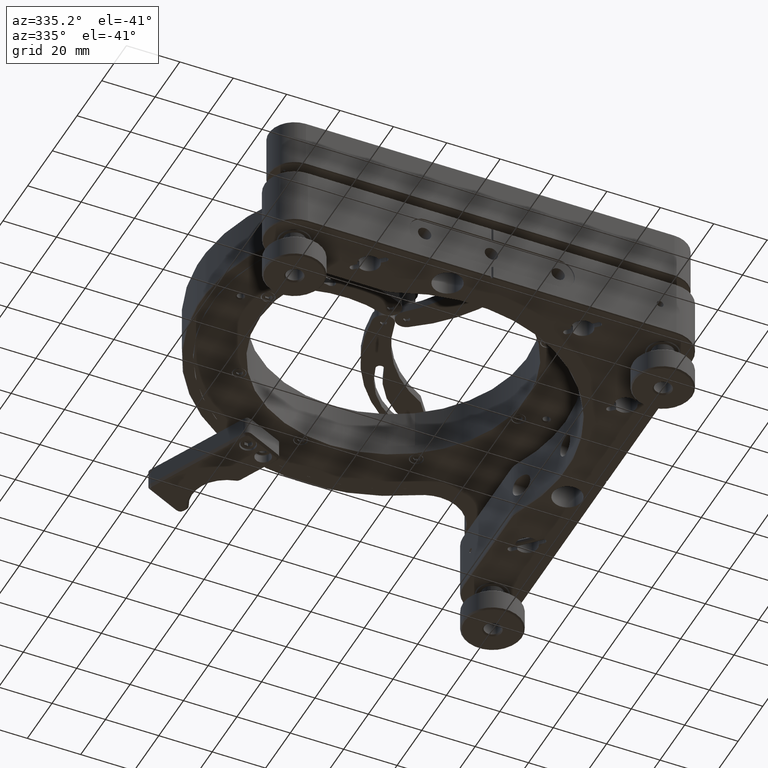
[diagram: clean part render]
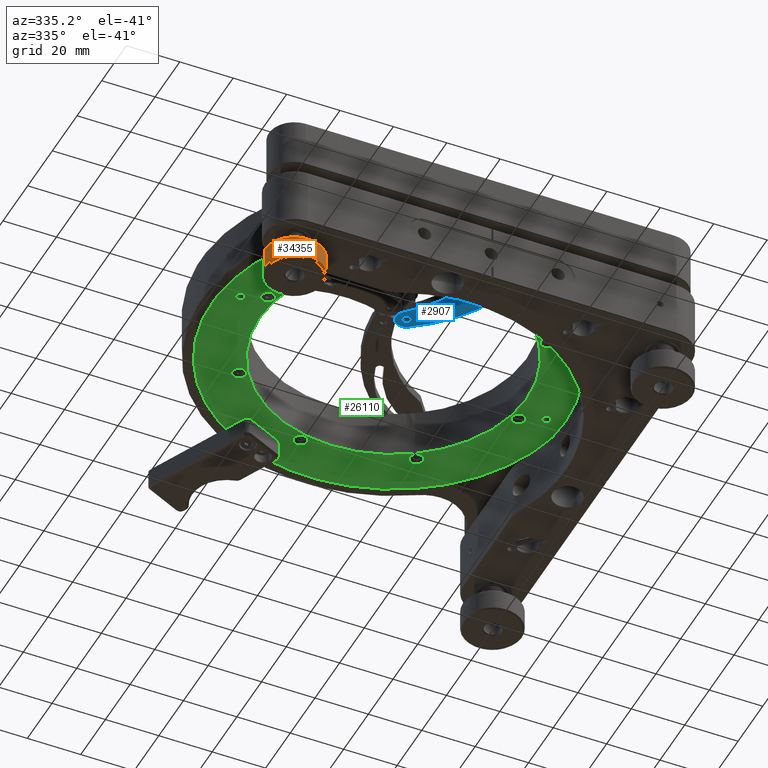
[diagram: same view with three faces highlighted in distinct colors, each labeled with its STEP entity id]
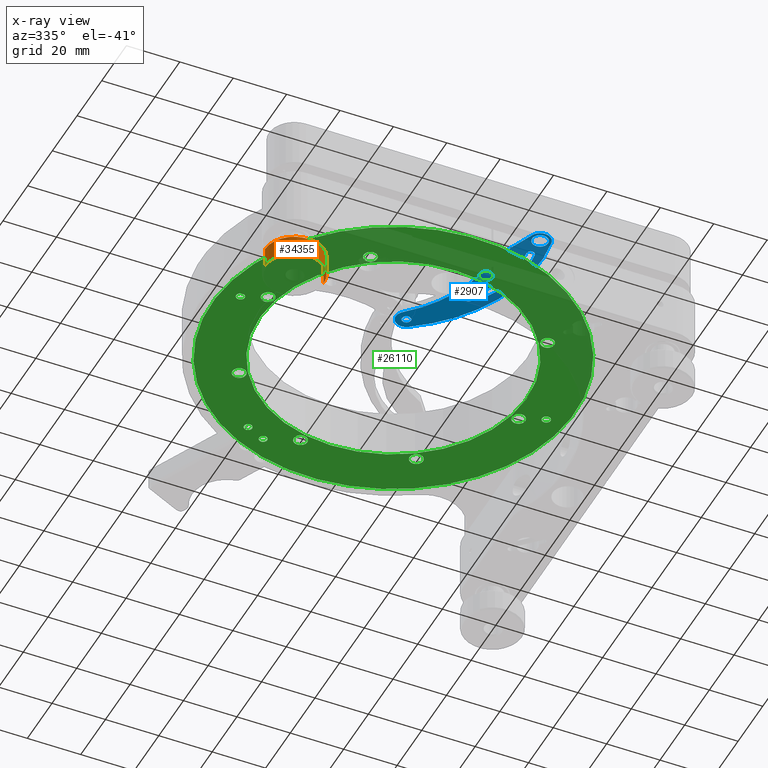
[diagram: x-ray of the same camera — body ghosted, the three highlighted faces saturated]
A machine part, auxiliary view with three faces highlighted in distinct colors.
The next image is the same camera in x-ray (body ghosted, the three faces saturated) — at least one of them is partly hidden behind the body in this view.
Their STEP definitions:

[orange] entity #34355 — the highlighted cylindrical surface (edge-blend (fillet) strip) has radius 11 mm, axis along (0, -0, -1).
#1059 = CARTESIAN_POINT ( 'NONE',  ( -25.13355819233196442, -51.18610618003471302, 41.08081318928080350 ) ) ;
#2793 = CARTESIAN_POINT ( 'NONE',  ( -36.13311552716503172, -51.28478970307667595, 48.58081318928081060 ) ) ;
#3302 = ORIENTED_EDGE ( 'NONE', *, *, #20271, .T. ) ;
#5561 = EDGE_CURVE ( 'NONE', #21149, #10064, #39898, .T. ) ;
#5732 = DIRECTION ( 'NONE',  ( 9.708507141352915573E-50, -1.405738883737467706E-50, -1.000000000000000000 ) ) ;
#6472 = ORIENTED_EDGE ( 'NONE', *, *, #18702, .T. ) ;
#7223 = CARTESIAN_POINT ( 'NONE',  ( -25.13355819233196442, -51.18610618003471302, 48.58081318928081060 ) ) ;
#9070 = DIRECTION ( 'NONE',  ( 0.9999597577120973302, 0.008971229367451439771, 0.000000000000000000 ) ) ;
#9088 = ORIENTED_EDGE ( 'NONE', *, *, #5561, .F. ) ;
#9839 = LINE ( 'NONE', #35423, #37794 ) ;
#10043 = CARTESIAN_POINT ( 'NONE',  ( -47.13267286199810258, -51.38347322611864598, 41.08081318928080350 ) ) ;
#10064 = VERTEX_POINT ( 'NONE', #1059 ) ;
#10196 = DIRECTION ( 'NONE',  ( -0.9999597577120973302, -0.008971229367451439771, 0.000000000000000000 ) ) ;
#11796 = DIRECTION ( 'NONE',  ( -0.9999597577120973302, -0.008971229367451439771, 0.000000000000000000 ) ) ;
#13897 = VERTEX_POINT ( 'NONE', #10043 ) ;
#14907 = DIRECTION ( 'NONE',  ( 9.708507141352915573E-50, -1.405738883737467706E-50, -1.000000000000000000 ) ) ;
#15121 = FACE_OUTER_BOUND ( 'NONE', #30147, .T. ) ;
#17619 = CIRCLE ( 'NONE', #19649, 11.00000000000002842 ) ;
#18702 = EDGE_CURVE ( 'NONE', #21149, #21930, #37621, .T. ) ;
#19649 = AXIS2_PLACEMENT_3D ( 'NONE', #25601, #29558, #10196 ) ;
#20271 = EDGE_CURVE ( 'NONE', #21930, #13897, #9839, .T. ) ;
#21026 = ORIENTED_EDGE ( 'NONE', *, *, #31818, .T. ) ;
#21149 = VERTEX_POINT ( 'NONE', #7223 ) ;
#21930 = VERTEX_POINT ( 'NONE', #28102 ) ;
#24090 = VECTOR ( 'NONE', #14907, 1000.000000000000000 ) ;
#25601 = CARTESIAN_POINT ( 'NONE',  ( -36.13311552716503172, -51.28478970307667595, 41.08081318928080350 ) ) ;
#26390 = AXIS2_PLACEMENT_3D ( 'NONE', #37593, #28446, #9070 ) ;
#27656 = AXIS2_PLACEMENT_3D ( 'NONE', #2793, #5732, #11796 ) ;
#27834 = CYLINDRICAL_SURFACE ( 'NONE', #26390, 11.00000000000002842 ) ;
#28102 = CARTESIAN_POINT ( 'NONE',  ( -47.13267286199810258, -51.38347322611864598, 48.58081318928081060 ) ) ;
#28446 = DIRECTION ( 'NONE',  ( 9.708507141352915573E-50, -1.405738883737467706E-50, -1.000000000000000000 ) ) ;
#29558 = DIRECTION ( 'NONE',  ( -9.708507141352915573E-50, 1.405738883737467706E-50, 1.000000000000000000 ) ) ;
#30147 = EDGE_LOOP ( 'NONE', ( #6472, #3302, #21026, #9088 ) ) ;
#31151 = CARTESIAN_POINT ( 'NONE',  ( -25.13355819233193600, -51.18610618003471302, 49.08081318928081771 ) ) ;
#31818 = EDGE_CURVE ( 'NONE', #13897, #10064, #17619, .T. ) ;
#34355 = ADVANCED_FACE ( 'NONE', ( #15121 ), #27834, .T. ) ;
#35423 = CARTESIAN_POINT ( 'NONE',  ( -47.13267286199813100, -51.38347322611864598, 49.08081318928081771 ) ) ;
#37593 = CARTESIAN_POINT ( 'NONE',  ( -36.13311552716503172, -51.28478970307667595, 49.08081318928081771 ) ) ;
#37621 = CIRCLE ( 'NONE', #27656, 11.00000000000002842 ) ;
#37794 = VECTOR ( 'NONE', #38980, 1000.000000000000000 ) ;
#38980 = DIRECTION ( 'NONE',  ( 9.708507141352915573E-50, -1.405738883737467706E-50, -1.000000000000000000 ) ) ;
#39898 = LINE ( 'NONE', #31151, #24090 ) ;

[blue] entity #2907 — the highlighted planar face has unit normal (-0, -0, -1).
#58 = CARTESIAN_POINT ( 'NONE',  ( 50.88223872565853867, -23.92790430131665858, 101.7358086520721230 ) ) ;
#1052 = DIRECTION ( 'NONE',  ( 3.938259351008654554E-16, 8.192752432459204675E-18, 1.000000000000000000 ) ) ;
#1212 = EDGE_CURVE ( 'NONE', #30265, #22453, #20400, .T. ) ;
#1220 = EDGE_CURVE ( 'NONE', #21457, #10017, #35083, .T. ) ;
#1592 = VERTEX_POINT ( 'NONE', #31735 ) ;
#1681 = CARTESIAN_POINT ( 'NONE',  ( 58.02355692039388657, -40.45066358787475025, 101.7358086520721230 ) ) ;
#1797 = EDGE_CURVE ( 'NONE', #39862, #12537, #38970, .T. ) ;
#2127 = EDGE_CURVE ( 'NONE', #8812, #28971, #34318, .T. ) ;
#2526 = DIRECTION ( 'NONE',  ( -0.9179310714754498335, -0.3967398997075195499, 4.405646923115701175E-16 ) ) ;
#2907 = ADVANCED_FACE ( 'NONE', ( #10287, #22991, #10703, #7352 ), #26535, .T. ) ;
#4310 = EDGE_CURVE ( 'NONE', #26769, #30265, #41149, .T. ) ;
#5135 = CARTESIAN_POINT ( 'NONE',  ( 61.55956685481619672, -5.695465492806514263, 101.7358086520721088 ) ) ;
#5181 = CARTESIAN_POINT ( 'NONE',  ( 61.69528120629568946, -38.86370398904468004, 101.7358086520721088 ) ) ;
#5406 = DIRECTION ( 'NONE',  ( 3.938259351008654554E-16, 8.192752432459204675E-18, 1.000000000000000000 ) ) ;
#5874 = CARTESIAN_POINT ( 'NONE',  ( 29.20473373600028921, -25.34174706074131933, 101.7358086520721230 ) ) ;
#5900 = ORIENTED_EDGE ( 'NONE', *, *, #23006, .T. ) ;
#6123 = DIRECTION ( 'NONE',  ( 3.938259351008654554E-16, 8.192752432459204675E-18, 1.000000000000000000 ) ) ;
#6755 = EDGE_LOOP ( 'NONE', ( #39942, #41098, #13636, #34574, #29278, #31701 ) ) ;
#6801 = CARTESIAN_POINT ( 'NONE',  ( 6.483702566289196945, -29.49985947525769703, 101.7358086520721372 ) ) ;
#7142 = DIRECTION ( 'NONE',  ( -0.9179310714754497225, -0.3967398997075196609, 0.000000000000000000 ) ) ;
#7150 = DIRECTION ( 'NONE',  ( -3.938259351008654061E-16, -8.192752432459195430E-18, -1.000000000000000000 ) ) ;
#7352 = FACE_OUTER_BOUND ( 'NONE', #23234, .T. ) ;
#7913 = CARTESIAN_POINT ( 'NONE',  ( 39.70917909255471301, 20.46080214568743472, 101.7358086520721230 ) ) ;
#7927 = DIRECTION ( 'NONE',  ( -0.9179310714754497225, -0.3967398997075196054, 4.022547190670858624E-16 ) ) ;
#7938 = AXIS2_PLACEMENT_3D ( 'NONE', #5874, #28180, #2526 ) ;
#8747 = EDGE_CURVE ( 'NONE', #10017, #15967, #24414, .T. ) ;
#8812 = VERTEX_POINT ( 'NONE', #12976 ) ;
#8967 = VERTEX_POINT ( 'NONE', #30889 ) ;
#9708 = CARTESIAN_POINT ( 'NONE',  ( 3.093063134598625030, -21.65498859432763012, 101.7358086520721372 ) ) ;
#10017 = VERTEX_POINT ( 'NONE', #1681 ) ;
#10287 = FACE_BOUND ( 'NONE', #22987, .T. ) ;
#10296 = VERTEX_POINT ( 'NONE', #37938 ) ;
#10538 = CIRCLE ( 'NONE', #39113, 2.999999999999993339 ) ;
#10697 = CARTESIAN_POINT ( 'NONE',  ( 52.12675144626264512, -1.601883874732458413, 101.7358086520721230 ) ) ;
#10703 = FACE_BOUND ( 'NONE', #19877, .T. ) ;
#10759 = DIRECTION ( 'NONE',  ( -0.9179310714754495004, -0.3967398997075201605, 0.000000000000000000 ) ) ;
#10853 = ORIENTED_EDGE ( 'NONE', *, *, #24531, .F. ) ;
#10922 = DIRECTION ( 'NONE',  ( -0.9179310714754495004, -0.3967398997075201605, 0.000000000000000000 ) ) ;
#11030 = ORIENTED_EDGE ( 'NONE', *, *, #1220, .F. ) ;
#11512 = VERTEX_POINT ( 'NONE', #23865 ) ;
#12073 = VERTEX_POINT ( 'NONE', #29765 ) ;
#12537 = VERTEX_POINT ( 'NONE', #20589 ) ;
#12940 = EDGE_CURVE ( 'NONE', #22453, #21457, #34180, .T. ) ;
#12976 = CARTESIAN_POINT ( 'NONE',  ( 60.29499851555623025, -31.84307663915524600, 101.7358086520721088 ) ) ;
#13002 = AXIS2_PLACEMENT_3D ( 'NONE', #15910, #19451, #19655 ) ;
#13064 = AXIS2_PLACEMENT_3D ( 'NONE', #9708, #34880, #37814 ) ;
#13122 = CIRCLE ( 'NONE', #27087, 60.00000000000000000 ) ;
#13339 = DIRECTION ( 'NONE',  ( 3.938259351008654554E-16, 8.192752432459204675E-18, 1.000000000000000000 ) ) ;
#13636 = ORIENTED_EDGE ( 'NONE', *, *, #32185, .T. ) ;
#14066 = DIRECTION ( 'NONE',  ( -0.9179310714754498335, -0.3967398997075195499, 2.900681565754647166E-16 ) ) ;
#14362 = DIRECTION ( 'NONE',  ( 3.938259351008654554E-16, 8.192752432459204675E-18, 1.000000000000000000 ) ) ;
#14446 = DIRECTION ( 'NONE',  ( 3.938259351008654554E-16, 8.192752432459204675E-18, 1.000000000000000000 ) ) ;
#15029 = EDGE_CURVE ( 'NONE', #8967, #12073, #19325, .T. ) ;
#15660 = AXIS2_PLACEMENT_3D ( 'NONE', #36655, #5406, #7927 ) ;
#15910 = CARTESIAN_POINT ( 'NONE',  ( 61.69528120629568946, -38.86370398904468004, 101.7358086520721088 ) ) ;
#15967 = VERTEX_POINT ( 'NONE', #40862 ) ;
#16887 = CARTESIAN_POINT ( 'NONE',  ( 61.67189512276940633, -31.24796678959396701, 101.7358086520721088 ) ) ;
#17579 = CARTESIAN_POINT ( 'NONE',  ( 61.69528120629568946, -38.86370398904468004, 101.7358086520721088 ) ) ;
#17677 = CIRCLE ( 'NONE', #15660, 34.49999999999998579 ) ;
#17905 = DIRECTION ( 'NONE',  ( 3.938259351008654554E-16, 8.192752432459204675E-18, 1.000000000000000000 ) ) ;
#18019 = ORIENTED_EDGE ( 'NONE', *, *, #38641, .T. ) ;
#18746 = CIRCLE ( 'NONE', #24072, 1.650000000000000577 ) ;
#19289 = DIRECTION ( 'NONE',  ( 0.9179310714754496114, 0.3967398997075199385, 0.000000000000000000 ) ) ;
#19325 = CIRCLE ( 'NONE', #35258, 1.650000000000000577 ) ;
#19374 = ORIENTED_EDGE ( 'NONE', *, *, #12940, .F. ) ;
#19451 = DIRECTION ( 'NONE',  ( 3.938259351008654554E-16, 8.192752432459204675E-18, 1.000000000000000000 ) ) ;
#19569 = AXIS2_PLACEMENT_3D ( 'NONE', #39277, #36135, #14066 ) ;
#19655 = DIRECTION ( 'NONE',  ( 0.9179310714754499445, 0.3967398997075192724, 0.000000000000000000 ) ) ;
#19877 = EDGE_LOOP ( 'NONE', ( #18019, #5900 ) ) ;
#20275 = VERTEX_POINT ( 'NONE', #29000 ) ;
#20287 = CARTESIAN_POINT ( 'NONE',  ( 61.69528120629568946, -38.86370398904468004, 101.7358086520721088 ) ) ;
#20400 = CIRCLE ( 'NONE', #13064, 47.84319648063121377 ) ;
#20588 = CIRCLE ( 'NONE', #7938, 31.49999999999999645 ) ;
#20589 = CARTESIAN_POINT ( 'NONE',  ( 51.08484155034162910, -2.680968565005593440, 101.7358086520721230 ) ) ;
#21457 = VERTEX_POINT ( 'NONE', #30474 ) ;
#21981 = DIRECTION ( 'NONE',  ( -0.9179310714754499445, -0.3967398997075193279, 0.000000000000000000 ) ) ;
#22135 = CIRCLE ( 'NONE', #24783, 1.499999999999996669 ) ;
#22453 = VERTEX_POINT ( 'NONE', #40120 ) ;
#22669 = CIRCLE ( 'NONE', #37939, 2.999999999999993339 ) ;
#22733 = DIRECTION ( 'NONE',  ( -0.9179310714754495004, -0.3967398997075201605, 0.000000000000000000 ) ) ;
#22987 = EDGE_LOOP ( 'NONE', ( #10853, #37709 ) ) ;
#22991 = FACE_BOUND ( 'NONE', #6755, .T. ) ;
#23006 = EDGE_CURVE ( 'NONE', #20275, #11512, #10538, .T. ) ;
#23232 = AXIS2_PLACEMENT_3D ( 'NONE', #24888, #6123, #21981 ) ;
#23234 = EDGE_LOOP ( 'NONE', ( #26929, #11030, #19374, #27444, #31869, #39006, #24233 ) ) ;
#23865 = CARTESIAN_POINT ( 'NONE',  ( 58.94148799186934440, -40.05392368816723803, 101.7358086520721088 ) ) ;
#23922 = DIRECTION ( 'NONE',  ( 3.938259351008654554E-16, 8.192752432459204675E-18, 1.000000000000000000 ) ) ;
#24072 = AXIS2_PLACEMENT_3D ( 'NONE', #25529, #38217, #19289 ) ;
#24233 = ORIENTED_EDGE ( 'NONE', *, *, #36816, .F. ) ;
#24381 = VECTOR ( 'NONE', #24923, 1000.000000000000114 ) ;
#24414 = CIRCLE ( 'NONE', #13002, 4.000000000000011546 ) ;
#24531 = EDGE_CURVE ( 'NONE', #12073, #8967, #18746, .T. ) ;
#24611 = CIRCLE ( 'NONE', #27845, 60.00000000000000000 ) ;
#24764 = CARTESIAN_POINT ( 'NONE',  ( 52.12675144626264512, -1.601883874732458413, 101.7358086520721230 ) ) ;
#24783 = AXIS2_PLACEMENT_3D ( 'NONE', #39279, #35935, #10759 ) ;
#24888 = CARTESIAN_POINT ( 'NONE',  ( 37.49414732413699625, 17.13009137095775003, 101.7358086520721230 ) ) ;
#24923 = DIRECTION ( 'NONE',  ( 0.3967398997075192724, -0.9179310714754499445, -1.487260799754769213E-16 ) ) ;
#25529 = CARTESIAN_POINT ( 'NONE',  ( 37.49414732413699625, 17.13009137095775003, 101.7358086520721230 ) ) ;
#26086 = CARTESIAN_POINT ( 'NONE',  ( 37.49414732413699625, 17.13009137095775003, 101.7358086520721230 ) ) ;
#26288 = DIRECTION ( 'NONE',  ( 0.9179310714754496114, 0.3967398997075199385, 0.000000000000000000 ) ) ;
#26535 = PLANE ( 'NONE',  #36224 ) ;
#26769 = VERTEX_POINT ( 'NONE', #7913 ) ;
#26929 = ORIENTED_EDGE ( 'NONE', *, *, #8747, .F. ) ;
#27087 = AXIS2_PLACEMENT_3D ( 'NONE', #32869, #23922, #27264 ) ;
#27195 = VERTEX_POINT ( 'NONE', #5135 ) ;
#27264 = DIRECTION ( 'NONE',  ( -0.9179310714754497225, -0.3967398997075196054, 4.625929269271485914E-16 ) ) ;
#27444 = ORIENTED_EDGE ( 'NONE', *, *, #1212, .F. ) ;
#27845 = AXIS2_PLACEMENT_3D ( 'NONE', #6801, #35936, #29718 ) ;
#28023 = EDGE_CURVE ( 'NONE', #27195, #26769, #13122, .T. ) ;
#28180 = DIRECTION ( 'NONE',  ( -3.938259351008654554E-16, -8.192752432459204675E-18, -1.000000000000000000 ) ) ;
#28971 = VERTEX_POINT ( 'NONE', #37739 ) ;
#28990 = AXIS2_PLACEMENT_3D ( 'NONE', #10697, #1052, #7142 ) ;
#29000 = CARTESIAN_POINT ( 'NONE',  ( 64.44907442072204162, -37.67348428992212206, 101.7358086520721088 ) ) ;
#29278 = ORIENTED_EDGE ( 'NONE', *, *, #1797, .T. ) ;
#29298 = CIRCLE ( 'NONE', #30653, 1.499999999999996225 ) ;
#29655 = DIRECTION ( 'NONE',  ( 0.9179310714754498335, 0.3967398997075196054, -3.647554543603408096E-16 ) ) ;
#29682 = AXIS2_PLACEMENT_3D ( 'NONE', #16887, #13339, #22733 ) ;
#29718 = DIRECTION ( 'NONE',  ( -0.9179310714754497225, -0.3967398997075196054, 4.625929269271485914E-16 ) ) ;
#29765 = CARTESIAN_POINT ( 'NONE',  ( 35.97956105620249900, 16.47547053644034420, 101.7358086520721230 ) ) ;
#30265 = VERTEX_POINT ( 'NONE', #35020 ) ;
#30474 = CARTESIAN_POINT ( 'NONE',  ( 50.88223872565904315, -23.92790430131667989, 101.7358086520721230 ) ) ;
#30653 = AXIS2_PLACEMENT_3D ( 'NONE', #24764, #17905, #37449 ) ;
#30889 = CARTESIAN_POINT ( 'NONE',  ( 39.00873359207148638, 17.78471220547515941, 101.7358086520721230 ) ) ;
#31029 = EDGE_CURVE ( 'NONE', #1592, #39862, #29298, .T. ) ;
#31701 = ORIENTED_EDGE ( 'NONE', *, *, #37559, .T. ) ;
#31735 = CARTESIAN_POINT ( 'NONE',  ( 53.16866134218364692, -0.5227991844593444792, 101.7358086520721230 ) ) ;
#31869 = ORIENTED_EDGE ( 'NONE', *, *, #4310, .F. ) ;
#32185 = EDGE_CURVE ( 'NONE', #28971, #1592, #17677, .T. ) ;
#32869 = CARTESIAN_POINT ( 'NONE',  ( 6.483702566289196945, -29.49985947525769703, 101.7358086520721372 ) ) ;
#34180 = CIRCLE ( 'NONE', #19569, 47.84319648063121377 ) ;
#34318 = CIRCLE ( 'NONE', #29682, 1.499999999999996669 ) ;
#34574 = ORIENTED_EDGE ( 'NONE', *, *, #31029, .T. ) ;
#34880 = DIRECTION ( 'NONE',  ( -3.938259351008654554E-16, -8.192752432459204675E-18, -1.000000000000000000 ) ) ;
#35020 = CARTESIAN_POINT ( 'NONE',  ( 34.83990634172480583, 14.13759996624497361, 101.7358086520721230 ) ) ;
#35083 = LINE ( 'NONE', #58, #24381 ) ;
#35258 = AXIS2_PLACEMENT_3D ( 'NONE', #26086, #38777, #26288 ) ;
#35935 = DIRECTION ( 'NONE',  ( 3.938259351008654554E-16, 8.192752432459204675E-18, 1.000000000000000000 ) ) ;
#35936 = DIRECTION ( 'NONE',  ( 3.938259351008654554E-16, 8.192752432459204675E-18, 1.000000000000000000 ) ) ;
#36135 = DIRECTION ( 'NONE',  ( -3.938259351008654554E-16, -8.192752432459204675E-18, -1.000000000000000000 ) ) ;
#36224 = AXIS2_PLACEMENT_3D ( 'NONE', #20287, #7150, #29655 ) ;
#36655 = CARTESIAN_POINT ( 'NONE',  ( 29.20473373600028921, -25.34174706074131933, 101.7358086520721230 ) ) ;
#36816 = EDGE_CURVE ( 'NONE', #15967, #27195, #24611, .T. ) ;
#37058 = DIRECTION ( 'NONE',  ( -0.9179310714754495004, -0.3967398997075201605, 0.000000000000000000 ) ) ;
#37449 = DIRECTION ( 'NONE',  ( -0.9179310714754497225, -0.3967398997075196609, 0.000000000000000000 ) ) ;
#37559 = EDGE_CURVE ( 'NONE', #12537, #10296, #20588, .T. ) ;
#37709 = ORIENTED_EDGE ( 'NONE', *, *, #15029, .F. ) ;
#37739 = CARTESIAN_POINT ( 'NONE',  ( 63.14767518580435990, -31.51643132272363701, 101.7358086520721088 ) ) ;
#37814 = DIRECTION ( 'NONE',  ( -0.9179310714754498335, -0.3967398997075195499, 2.900681565754647166E-16 ) ) ;
#37938 = CARTESIAN_POINT ( 'NONE',  ( 60.19611505973445276, -30.97950225646429345, 101.7358086520721088 ) ) ;
#37939 = AXIS2_PLACEMENT_3D ( 'NONE', #17579, #14446, #10922 ) ;
#38217 = DIRECTION ( 'NONE',  ( -3.938259351008654554E-16, -8.192752432459204675E-18, -1.000000000000000000 ) ) ;
#38455 = CARTESIAN_POINT ( 'NONE',  ( 50.74985483904947614, -2.196993724293736960, 101.7358086520721230 ) ) ;
#38641 = EDGE_CURVE ( 'NONE', #11512, #20275, #22669, .T. ) ;
#38777 = DIRECTION ( 'NONE',  ( -3.938259351008654554E-16, -8.192752432459204675E-18, -1.000000000000000000 ) ) ;
#38970 = CIRCLE ( 'NONE', #28990, 1.499999999999996225 ) ;
#39006 = ORIENTED_EDGE ( 'NONE', *, *, #28023, .F. ) ;
#39113 = AXIS2_PLACEMENT_3D ( 'NONE', #5181, #14362, #37058 ) ;
#39277 = CARTESIAN_POINT ( 'NONE',  ( 3.093063134598625030, -21.65498859432763012, 101.7358086520721372 ) ) ;
#39279 = CARTESIAN_POINT ( 'NONE',  ( 61.67189512276940633, -31.24796678959396701, 101.7358086520721088 ) ) ;
#39862 = VERTEX_POINT ( 'NONE', #38455 ) ;
#39942 = ORIENTED_EDGE ( 'NONE', *, *, #39976, .T. ) ;
#39976 = EDGE_CURVE ( 'NONE', #10296, #8812, #22135, .T. ) ;
#40120 = CARTESIAN_POINT ( 'NONE',  ( 47.00981974287490317, -2.673683620914850234, 101.7358086520721230 ) ) ;
#40862 = CARTESIAN_POINT ( 'NONE',  ( 65.63896539486758286, -39.53255002574373833, 101.7358086520721088 ) ) ;
#41098 = ORIENTED_EDGE ( 'NONE', *, *, #2127, .T. ) ;
#41149 = CIRCLE ( 'NONE', #23232, 3.999999999999543032 ) ;

[green] entity #26110 — the highlighted planar face has unit normal (0, 0, 1).
#89 = VERTEX_POINT ( 'NONE', #17040 ) ;
#131 = DIRECTION ( 'NONE',  ( -0.9790999323250472175, -0.2033797495354150719, 0.000000000000000000 ) ) ;
#265 = VERTEX_POINT ( 'NONE', #8687 ) ;
#313 = ORIENTED_EDGE ( 'NONE', *, *, #18870, .F. ) ;
#384 = CARTESIAN_POINT ( 'NONE',  ( 3.795483390484008623, -26.60017799099838598, 83.13580865207228499 ) ) ;
#512 = DIRECTION ( 'NONE',  ( -0.9790999323250471065, -0.2033797495354151552, 0.000000000000000000 ) ) ;
#735 = EDGE_CURVE ( 'NONE', #37465, #33267, #30983, .T. ) ;
#972 = ORIENTED_EDGE ( 'NONE', *, *, #32721, .F. ) ;
#1016 = DIRECTION ( 'NONE',  ( -0.9790999323250471065, -0.2033797495354152662, 0.000000000000000000 ) ) ;
#1054 = FACE_BOUND ( 'NONE', #35031, .T. ) ;
#1235 = AXIS2_PLACEMENT_3D ( 'NONE', #37534, #31506, #9433 ) ;
#1825 = EDGE_CURVE ( 'NONE', #34831, #36581, #39620, .T. ) ;
#2004 = DIRECTION ( 'NONE',  ( -9.820066859581441067E-16, -9.806269261414739231E-16, -1.000000000000000000 ) ) ;
#2302 = CIRCLE ( 'NONE', #25609, 2.524999999999999911 ) ;
#2425 = CIRCLE ( 'NONE', #16433, 1.600000000000006306 ) ;
#2458 = DIRECTION ( 'NONE',  ( 0.9790999323250472175, 0.2033797495354147666, -1.110223024625156540E-15 ) ) ;
#2475 = CARTESIAN_POINT ( 'NONE',  ( 8.784915813877931967, 74.06848574709992761, 83.13580865207219972 ) ) ;
#2497 = ORIENTED_EDGE ( 'NONE', *, *, #38579, .F. ) ;
#2612 = CARTESIAN_POINT ( 'NONE',  ( 1.563900896435873378, 70.62509445912824901, 83.13580865207219972 ) ) ;
#2626 = EDGE_LOOP ( 'NONE', ( #3323, #23812 ) ) ;
#2718 = VERTEX_POINT ( 'NONE', #2612 ) ;
#2821 = CARTESIAN_POINT ( 'NONE',  ( 84.75918088606437095, 28.49433702229698540, 83.13580865207215709 ) ) ;
#2976 = AXIS2_PLACEMENT_3D ( 'NONE', #31859, #34563, #37686 ) ;
#3017 = CIRCLE ( 'NONE', #23012, 2.525000000000000799 ) ;
#3223 = AXIS2_PLACEMENT_3D ( 'NONE', #31423, #25577, #28703 ) ;
#3323 = ORIENTED_EDGE ( 'NONE', *, *, #32274, .F. ) ;
#3395 = VERTEX_POINT ( 'NONE', #18326 ) ;
#3432 = CIRCLE ( 'NONE', #26755, 1.524999999999999911 ) ;
#3658 = DIRECTION ( 'NONE',  ( -9.820066859581441067E-16, -9.806269261414739231E-16, -1.000000000000000000 ) ) ;
#3659 = CARTESIAN_POINT ( 'NONE',  ( -19.02541194039064010, 6.936083571543018245, 83.13580865207227077 ) ) ;
#3670 = AXIS2_PLACEMENT_3D ( 'NONE', #6319, #12383, #18842 ) ;
#3908 = CARTESIAN_POINT ( 'NONE',  ( 79.65450008987608044, -10.84265691785578234, 83.13580865207221393 ) ) ;
#4333 = AXIS2_PLACEMENT_3D ( 'NONE', #17555, #7746, #33573 ) ;
#4404 = PLANE ( 'NONE',  #17565 ) ;
#4451 = AXIS2_PLACEMENT_3D ( 'NONE', #31032, #22268, #2458 ) ;
#5254 = EDGE_CURVE ( 'NONE', #37300, #22668, #10561, .T. ) ;
#5401 = DIRECTION ( 'NONE',  ( -9.820066859581441067E-16, -9.806269261414739231E-16, -1.000000000000000000 ) ) ;
#5549 = CIRCLE ( 'NONE', #24872, 2.524999999999994138 ) ;
#5712 = AXIS2_PLACEMENT_3D ( 'NONE', #26152, #29069, #13224 ) ;
#5773 = CARTESIAN_POINT ( 'NONE',  ( 4.550155690027264832, 71.24540269521128266, 83.13580865207219972 ) ) ;
#6171 = ORIENTED_EDGE ( 'NONE', *, *, #22795, .F. ) ;
#6184 = DIRECTION ( 'NONE',  ( -0.9790999323250471065, -0.2033797495354151552, 0.000000000000000000 ) ) ;
#6213 = ORIENTED_EDGE ( 'NONE', *, *, #8227, .F. ) ;
#6319 = CARTESIAN_POINT ( 'NONE',  ( 93.44597682433909824, 24.86878072490657843, 83.13580865207215709 ) ) ;
#6545 = CARTESIAN_POINT ( 'NONE',  ( 95.01253671605917361, 25.19418832416324250, 83.13580865207215709 ) ) ;
#6649 = CARTESIAN_POINT ( 'NONE',  ( 3.057028293231567329, 70.93524857716975873, 83.13580865207219972 ) ) ;
#6831 = VERTEX_POINT ( 'NONE', #5773 ) ;
#6933 = DIRECTION ( 'NONE',  ( 0.9790999323250471065, 0.2033797495354147111, -1.160922338390699014E-15 ) ) ;
#7110 = CIRCLE ( 'NONE', #18448, 1.524999999999999911 ) ;
#7112 = CARTESIAN_POINT ( 'NONE',  ( 74.71004543163461165, -11.86972465300962476, 83.13580865207221393 ) ) ;
#7144 = CARTESIAN_POINT ( 'NONE',  ( 32.86688447283686543, 17.71521029692000226, 83.13580865207222814 ) ) ;
#7272 = DIRECTION ( 'NONE',  ( -9.820066859581441067E-16, -9.806269261414739231E-16, -1.000000000000000000 ) ) ;
#7346 = FACE_BOUND ( 'NONE', #40418, .T. ) ;
#7458 = CARTESIAN_POINT ( 'NONE',  ( -16.55318461126989149, 7.449617439119942119, 83.13580865207227077 ) ) ;
#7545 = FACE_BOUND ( 'NONE', #2626, .T. ) ;
#7571 = DIRECTION ( 'NONE',  ( -0.9790999323250463293, -0.2033797495354190688, 0.000000000000000000 ) ) ;
#7604 = CARTESIAN_POINT ( 'NONE',  ( 22.08775774746006704, 69.60750671014753266, 83.13580865207218551 ) ) ;
#7634 = CIRCLE ( 'NONE', #8303, 1.524999999999999911 ) ;
#7746 = DIRECTION ( 'NONE',  ( 9.820066859581441067E-16, 9.806269261414739231E-16, 1.000000000000000000 ) ) ;
#7874 = EDGE_CURVE ( 'NONE', #30676, #24012, #33609, .T. ) ;
#7900 = VERTEX_POINT ( 'NONE', #30823 ) ;
#8029 = DIRECTION ( 'NONE',  ( -9.820066859581441067E-16, -9.806269261414739231E-16, -1.000000000000000000 ) ) ;
#8227 = EDGE_CURVE ( 'NONE', #31845, #21777, #3017, .T. ) ;
#8260 = CARTESIAN_POINT ( 'NONE',  ( -27.71220787866536384, 10.56163986893342255, 83.13580865207228499 ) ) ;
#8303 = AXIS2_PLACEMENT_3D ( 'NONE', #6649, #29148, #28938 ) ;
#8604 = CIRCLE ( 'NONE', #1235, 1.524999999999999911 ) ;
#8639 = DIRECTION ( 'NONE',  ( 9.820066859581441067E-16, 9.806269261414739231E-16, 1.000000000000000000 ) ) ;
#8687 = CARTESIAN_POINT ( 'NONE',  ( 59.46605822606867520, 61.51706471726166114, 83.13580865207215709 ) ) ;
#8846 = CARTESIAN_POINT ( 'NONE',  ( 87.23140821518511245, 29.00787088987391016, 83.13580865207215709 ) ) ;
#8869 = DIRECTION ( 'NONE',  ( 0.9790999323250472175, 0.2033797495354147666, -1.110223024625156540E-15 ) ) ;
#8904 = DIRECTION ( 'NONE',  ( -9.820066859581441067E-16, -9.806269261414739231E-16, -1.000000000000000000 ) ) ;
#8920 = CARTESIAN_POINT ( 'NONE',  ( -11.44850381508181947, 46.78661137927239366, 83.13580865207222814 ) ) ;
#9433 = DIRECTION ( 'NONE',  ( -0.9790999323250463293, -0.2033797495354190688, 0.000000000000000000 ) ) ;
#9562 = CARTESIAN_POINT ( 'NONE',  ( -26.14564798694529202, 10.88704746819008662, 83.13580865207228499 ) ) ;
#9593 = VERTEX_POINT ( 'NONE', #9562 ) ;
#9850 = CARTESIAN_POINT ( 'NONE',  ( 99.44567987094008288, 31.54503326532821816, 83.13580865207214288 ) ) ;
#9857 = AXIS2_PLACEMENT_3D ( 'NONE', #12208, #18663, #8869 ) ;
#9941 = CARTESIAN_POINT ( 'NONE',  ( 3.795483390484008623, -26.60017799099838598, 83.13580865207228499 ) ) ;
#10097 = ORIENTED_EDGE ( 'NONE', *, *, #31039, .F. ) ;
#10508 = AXIS2_PLACEMENT_3D ( 'NONE', #7604, #8029, #23665 ) ;
#10561 = CIRCLE ( 'NONE', #33808, 2.524999999999999911 ) ;
#10671 = EDGE_CURVE ( 'NONE', #40869, #27764, #3432, .T. ) ;
#10728 = CARTESIAN_POINT ( 'NONE',  ( 3.057028293231567329, 70.93524857716975873, 83.13580865207219972 ) ) ;
#10834 = CIRCLE ( 'NONE', #12164, 2.525000000000001243 ) ;
#10844 = AXIS2_PLACEMENT_3D ( 'NONE', #26680, #13138, #10852 ) ;
#10852 = DIRECTION ( 'NONE',  ( -0.9790999323250471065, -0.2033797495354151552, 0.000000000000000000 ) ) ;
#10898 = FACE_BOUND ( 'NONE', #33166, .T. ) ;
#11135 = DIRECTION ( 'NONE',  ( -9.820066859581441067E-16, -9.806269261414739231E-16, -1.000000000000000000 ) ) ;
#11154 = CIRCLE ( 'NONE', #37734, 68.00000000000000000 ) ;
#11374 = ORIENTED_EDGE ( 'NONE', *, *, #36329, .F. ) ;
#11445 = ORIENTED_EDGE ( 'NONE', *, *, #10671, .F. ) ;
#11513 = ORIENTED_EDGE ( 'NONE', *, *, #19559, .F. ) ;
#11922 = CIRCLE ( 'NONE', #3223, 1.599999999999999423 ) ;
#12164 = AXIS2_PLACEMENT_3D ( 'NONE', #21480, #39791, #33540 ) ;
#12169 = DIRECTION ( 'NONE',  ( 0.9790999323250472175, 0.2033797495354147666, -1.224510688924804996E-15 ) ) ;
#12208 = CARTESIAN_POINT ( 'NONE',  ( 32.86688447283686543, 17.71521029692000226, 83.13580865207222814 ) ) ;
#12283 = EDGE_CURVE ( 'NONE', #23849, #27670, #5549, .T. ) ;
#12383 = DIRECTION ( 'NONE',  ( -9.820066859581441067E-16, -9.806269261414739231E-16, -1.000000000000000000 ) ) ;
#12423 = CARTESIAN_POINT ( 'NONE',  ( 93.44597682433909824, 24.86878072490657843, 83.13580865207215709 ) ) ;
#13059 = ORIENTED_EDGE ( 'NONE', *, *, #22409, .F. ) ;
#13138 = DIRECTION ( 'NONE',  ( -9.820066859581441067E-16, -9.806269261414739231E-16, -1.000000000000000000 ) ) ;
#13224 = DIRECTION ( 'NONE',  ( -0.9790999323250472175, -0.2033797495354144891, 0.000000000000000000 ) ) ;
#13309 = AXIS2_PLACEMENT_3D ( 'NONE', #8920, #28093, #40157 ) ;
#13540 = ORIENTED_EDGE ( 'NONE', *, *, #37572, .F. ) ;
#13803 = FACE_BOUND ( 'NONE', #20921, .T. ) ;
#13882 = DIRECTION ( 'NONE',  ( -9.820066859581441067E-16, -9.806269261414739231E-16, -1.000000000000000000 ) ) ;
#14007 = DIRECTION ( 'NONE',  ( 9.820066859581439095E-16, 9.806269261414737259E-16, 1.000000000000000000 ) ) ;
#14168 = CARTESIAN_POINT ( 'NONE',  ( 11.77117060746932253, 74.68879398318296126, 83.13580865207219972 ) ) ;
#14403 = CARTESIAN_POINT ( 'NONE',  ( -13.92073114420255919, 46.27307751169547601, 83.13580865207222814 ) ) ;
#14863 = DIRECTION ( 'NONE',  ( -9.820066859581441067E-16, -9.806269261414739231E-16, -1.000000000000000000 ) ) ;
#14979 = CIRCLE ( 'NONE', #31592, 2.525000000000001243 ) ;
#15003 = CIRCLE ( 'NONE', #2976, 2.525000000000001243 ) ;
#15326 = ORIENTED_EDGE ( 'NONE', *, *, #31955, .F. ) ;
#15843 = CARTESIAN_POINT ( 'NONE',  ( -8.976276485961072638, 47.30014524684931843, 83.13580865207222814 ) ) ;
#15856 = VERTEX_POINT ( 'NONE', #33648 ) ;
#15870 = ORIENTED_EDGE ( 'NONE', *, *, #28125, .F. ) ;
#16433 = AXIS2_PLACEMENT_3D ( 'NONE', #12423, #36998, #18676 ) ;
#16842 = CIRCLE ( 'NONE', #10844, 2.525000000000001243 ) ;
#16972 = ORIENTED_EDGE ( 'NONE', *, *, #28416, .F. ) ;
#17040 = CARTESIAN_POINT ( 'NONE',  ( 41.17378386909255994, -34.69061998388453816, 83.13580865207225656 ) ) ;
#17077 = ORIENTED_EDGE ( 'NONE', *, *, #35553, .F. ) ;
#17228 = EDGE_LOOP ( 'NONE', ( #6171, #18858 ) ) ;
#17495 = CARTESIAN_POINT ( 'NONE',  ( -21.49763926951138160, 6.422549703966097923, 83.13580865207227077 ) ) ;
#17555 = CARTESIAN_POINT ( 'NONE',  ( 32.86688447283686543, 17.71521029692000226, 83.13580865207222814 ) ) ;
#17565 = AXIS2_PLACEMENT_3D ( 'NONE', #7144, #14007, #6933 ) ;
#17747 = CARTESIAN_POINT ( 'NONE',  ( -16.08811214341550411, 7.546222820149269594, 83.13580865207227077 ) ) ;
#17781 = CIRCLE ( 'NONE', #4451, 50.00000000000000000 ) ;
#18171 = EDGE_LOOP ( 'NONE', ( #15326, #19963 ) ) ;
#18326 = CARTESIAN_POINT ( 'NONE',  ( 24.55998507658081564, 70.12104057772445742, 83.13580865207218551 ) ) ;
#18396 = EDGE_CURVE ( 'NONE', #15856, #265, #14979, .T. ) ;
#18448 = AXIS2_PLACEMENT_3D ( 'NONE', #10728, #11135, #7571 ) ;
#18663 = DIRECTION ( 'NONE',  ( -9.820066859581441067E-16, -9.806269261414739231E-16, -1.000000000000000000 ) ) ;
#18676 = DIRECTION ( 'NONE',  ( -0.9790999323250472175, -0.2033797495354147666, 0.000000000000000000 ) ) ;
#18842 = DIRECTION ( 'NONE',  ( -0.9790999323250472175, -0.2033797495354147666, 0.000000000000000000 ) ) ;
#18858 = ORIENTED_EDGE ( 'NONE', *, *, #1825, .F. ) ;
#18870 = EDGE_CURVE ( 'NONE', #21777, #31845, #38300, .T. ) ;
#18921 = AXIS2_PLACEMENT_3D ( 'NONE', #31203, #28278, #6184 ) ;
#19156 = DIRECTION ( 'NONE',  ( -9.820066859581441067E-16, -9.806269261414739231E-16, -1.000000000000000000 ) ) ;
#19559 = EDGE_CURVE ( 'NONE', #9593, #34829, #11922, .T. ) ;
#19656 = FACE_BOUND ( 'NONE', #23627, .T. ) ;
#19677 = CARTESIAN_POINT ( 'NONE',  ( 6.267710719604755454, -26.08664412342146477, 83.13580865207228499 ) ) ;
#19700 = VERTEX_POINT ( 'NONE', #26002 ) ;
#19963 = ORIENTED_EDGE ( 'NONE', *, *, #5254, .F. ) ;
#20279 = CIRCLE ( 'NONE', #18921, 2.525000000000001243 ) ;
#20797 = CARTESIAN_POINT ( 'NONE',  ( -33.71191092526634492, 3.885387328511800131, 83.13580865207229920 ) ) ;
#20921 = EDGE_LOOP ( 'NONE', ( #40574, #13059 ) ) ;
#20981 = DIRECTION ( 'NONE',  ( -9.820066859581441067E-16, -9.806269261414739231E-16, -1.000000000000000000 ) ) ;
#21001 = DIRECTION ( 'NONE',  ( -0.9790999323250469955, -0.2033797495354157381, 0.000000000000000000 ) ) ;
#21128 = ORIENTED_EDGE ( 'NONE', *, *, #26938, .F. ) ;
#21480 = CARTESIAN_POINT ( 'NONE',  ( 22.08775774746006704, 69.60750671014753266, 83.13580865207218551 ) ) ;
#21773 = AXIS2_PLACEMENT_3D ( 'NONE', #8260, #20981, #23493 ) ;
#21777 = VERTEX_POINT ( 'NONE', #17495 ) ;
#21816 = CARTESIAN_POINT ( 'NONE',  ( 46.11823852733405005, -33.66355224873068863, 83.13580865207225656 ) ) ;
#22218 = ORIENTED_EDGE ( 'NONE', *, *, #34619, .F. ) ;
#22268 = DIRECTION ( 'NONE',  ( -9.820066859581441067E-16, -9.806269261414739231E-16, -1.000000000000000000 ) ) ;
#22292 = EDGE_CURVE ( 'NONE', #34829, #9593, #30433, .T. ) ;
#22310 = ORIENTED_EDGE ( 'NONE', *, *, #18396, .F. ) ;
#22409 = EDGE_CURVE ( 'NONE', #33267, #37465, #2425, .T. ) ;
#22648 = DIRECTION ( 'NONE',  ( -0.9790999323250471065, -0.2033797495354152662, 0.000000000000000000 ) ) ;
#22668 = VERTEX_POINT ( 'NONE', #26780 ) ;
#22747 = DIRECTION ( 'NONE',  ( -9.820066859581441067E-16, -9.806269261414739231E-16, -1.000000000000000000 ) ) ;
#22795 = EDGE_CURVE ( 'NONE', #36581, #34831, #11154, .T. ) ;
#23012 = AXIS2_PLACEMENT_3D ( 'NONE', #3659, #13882, #26193 ) ;
#23088 = ORIENTED_EDGE ( 'NONE', *, *, #7874, .F. ) ;
#23493 = DIRECTION ( 'NONE',  ( -0.9790999323250472175, -0.2033797495354145723, 0.000000000000000000 ) ) ;
#23528 = VERTEX_POINT ( 'NONE', #21816 ) ;
#23627 = EDGE_LOOP ( 'NONE', ( #10097, #23088 ) ) ;
#23665 = DIRECTION ( 'NONE',  ( -0.9790999323250471065, -0.2033797495354151552, 0.000000000000000000 ) ) ;
#23812 = ORIENTED_EDGE ( 'NONE', *, *, #26500, .F. ) ;
#23849 = VERTEX_POINT ( 'NONE', #24481 ) ;
#24012 = VERTEX_POINT ( 'NONE', #14403 ) ;
#24069 = VERTEX_POINT ( 'NONE', #17747 ) ;
#24481 = CARTESIAN_POINT ( 'NONE',  ( 82.28695355694364366, 27.98080315472006063, 83.13580865207215709 ) ) ;
#24676 = CARTESIAN_POINT ( 'NONE',  ( 32.86688447283686543, 17.71521029692000226, 83.13580865207222814 ) ) ;
#24872 = AXIS2_PLACEMENT_3D ( 'NONE', #2821, #2004, #21001 ) ;
#25304 = CIRCLE ( 'NONE', #13309, 2.524999999999999467 ) ;
#25356 = CARTESIAN_POINT ( 'NONE',  ( 77.18227276075533894, -11.35619078543270355, 83.13580865207221393 ) ) ;
#25406 = CARTESIAN_POINT ( 'NONE',  ( 77.18227276075533894, -11.35619078543270355, 83.13580865207221393 ) ) ;
#25553 = DIRECTION ( 'NONE',  ( -9.820066859581441067E-16, -9.806269261414739231E-16, -1.000000000000000000 ) ) ;
#25577 = DIRECTION ( 'NONE',  ( -9.820066859581441067E-16, -9.806269261414739231E-16, -1.000000000000000000 ) ) ;
#25609 = AXIS2_PLACEMENT_3D ( 'NONE', #384, #22747, #1016 ) ;
#26002 = CARTESIAN_POINT ( 'NONE',  ( 81.82188108908921720, 27.88419777369074026, 83.13580865207217130 ) ) ;
#26044 = CARTESIAN_POINT ( 'NONE',  ( -11.44850381508181947, 46.78661137927239366, 83.13580865207222814 ) ) ;
#26110 = ADVANCED_FACE ( 'NONE', ( #36072, #35659, #30067, #13803, #26728, #7545, #39009, #1054, #10898, #7346, #19656, #29237, #35448, #26526 ), #4404, .F. ) ;
#26152 = CARTESIAN_POINT ( 'NONE',  ( -19.02541194039064010, 6.936083571543018245, 83.13580865207227077 ) ) ;
#26193 = DIRECTION ( 'NONE',  ( -0.9790999323250472175, -0.2033797495354144891, 0.000000000000000000 ) ) ;
#26500 = EDGE_CURVE ( 'NONE', #23528, #89, #16842, .T. ) ;
#26519 = EDGE_LOOP ( 'NONE', ( #29376, #11513 ) ) ;
#26526 = FACE_OUTER_BOUND ( 'NONE', #17228, .T. ) ;
#26545 = CIRCLE ( 'NONE', #27874, 2.524999999999993694 ) ;
#26654 = CIRCLE ( 'NONE', #35933, 2.524999999999994138 ) ;
#26680 = CARTESIAN_POINT ( 'NONE',  ( 43.64601119821330855, -34.17708611630761339, 83.13580865207225656 ) ) ;
#26728 = FACE_BOUND ( 'NONE', #18171, .T. ) ;
#26755 = AXIS2_PLACEMENT_3D ( 'NONE', #27512, #5401, #31250 ) ;
#26780 = CARTESIAN_POINT ( 'NONE',  ( 1.323256061363267788, -27.11371185857531074, 83.13580865207228499 ) ) ;
#26938 = EDGE_CURVE ( 'NONE', #24069, #19700, #17781, .T. ) ;
#26946 = CARTESIAN_POINT ( 'NONE',  ( 91.87941693261900866, 24.54337312564991436, 83.13580865207215709 ) ) ;
#27512 = CARTESIAN_POINT ( 'NONE',  ( 10.27804321067362459, 74.37863986514143733, 83.13580865207219972 ) ) ;
#27670 = VERTEX_POINT ( 'NONE', #8846 ) ;
#27764 = VERTEX_POINT ( 'NONE', #14168 ) ;
#27874 = AXIS2_PLACEMENT_3D ( 'NONE', #25406, #19156, #131 ) ;
#28093 = DIRECTION ( 'NONE',  ( -9.820066859581441067E-16, -9.806269261414739231E-16, -1.000000000000000000 ) ) ;
#28125 = EDGE_CURVE ( 'NONE', #31887, #29283, #29795, .T. ) ;
#28278 = DIRECTION ( 'NONE',  ( -9.820066859581441067E-16, -9.806269261414739231E-16, -1.000000000000000000 ) ) ;
#28416 = EDGE_CURVE ( 'NONE', #3395, #7900, #35731, .T. ) ;
#28686 = EDGE_LOOP ( 'NONE', ( #33503, #22218 ) ) ;
#28703 = DIRECTION ( 'NONE',  ( -0.9790999323250472175, -0.2033797495354145723, 0.000000000000000000 ) ) ;
#28938 = DIRECTION ( 'NONE',  ( -0.9790999323250463293, -0.2033797495354190688, 0.000000000000000000 ) ) ;
#29069 = DIRECTION ( 'NONE',  ( -9.820066859581441067E-16, -9.806269261414739231E-16, -1.000000000000000000 ) ) ;
#29148 = DIRECTION ( 'NONE',  ( -9.820066859581441067E-16, -9.806269261414739231E-16, -1.000000000000000000 ) ) ;
#29237 = FACE_BOUND ( 'NONE', #40226, .T. ) ;
#29283 = VERTEX_POINT ( 'NONE', #7112 ) ;
#29376 = ORIENTED_EDGE ( 'NONE', *, *, #22292, .F. ) ;
#29449 = ORIENTED_EDGE ( 'NONE', *, *, #40922, .F. ) ;
#29795 = CIRCLE ( 'NONE', #39729, 2.524999999999993694 ) ;
#30067 = FACE_BOUND ( 'NONE', #26519, .T. ) ;
#30296 = DIRECTION ( 'NONE',  ( -0.9790999323250469955, -0.2033797495354157381, 0.000000000000000000 ) ) ;
#30433 = CIRCLE ( 'NONE', #21773, 1.599999999999999423 ) ;
#30676 = VERTEX_POINT ( 'NONE', #15843 ) ;
#30823 = CARTESIAN_POINT ( 'NONE',  ( 19.61553041833932554, 69.09397284257060790, 83.13580865207218551 ) ) ;
#30983 = CIRCLE ( 'NONE', #3670, 1.600000000000006306 ) ;
#30984 = AXIS2_PLACEMENT_3D ( 'NONE', #26044, #7272, #38729 ) ;
#31032 = CARTESIAN_POINT ( 'NONE',  ( 32.86688447283686543, 17.71521029692000226, 83.13580865207222814 ) ) ;
#31034 = EDGE_LOOP ( 'NONE', ( #11445, #13540 ) ) ;
#31039 = EDGE_CURVE ( 'NONE', #24012, #30676, #25304, .T. ) ;
#31203 = CARTESIAN_POINT ( 'NONE',  ( 61.93828555518941670, 62.03059858483858591, 83.13580865207215709 ) ) ;
#31250 = DIRECTION ( 'NONE',  ( -0.9790999323250463293, -0.2033797495354190688, 0.000000000000000000 ) ) ;
#31423 = CARTESIAN_POINT ( 'NONE',  ( -27.71220787866536384, 10.56163986893342255, 83.13580865207228499 ) ) ;
#31506 = DIRECTION ( 'NONE',  ( -9.820066859581441067E-16, -9.806269261414739231E-16, -1.000000000000000000 ) ) ;
#31592 = AXIS2_PLACEMENT_3D ( 'NONE', #32220, #3658, #512 ) ;
#31665 = ORIENTED_EDGE ( 'NONE', *, *, #12283, .F. ) ;
#31845 = VERTEX_POINT ( 'NONE', #7458 ) ;
#31859 = CARTESIAN_POINT ( 'NONE',  ( 43.64601119821330855, -34.17708611630761339, 83.13580865207225656 ) ) ;
#31887 = VERTEX_POINT ( 'NONE', #3908 ) ;
#31928 = EDGE_CURVE ( 'NONE', #2718, #6831, #7634, .T. ) ;
#31955 = EDGE_CURVE ( 'NONE', #22668, #37300, #2302, .T. ) ;
#32220 = CARTESIAN_POINT ( 'NONE',  ( 61.93828555518941670, 62.03059858483858591, 83.13580865207215709 ) ) ;
#32274 = EDGE_CURVE ( 'NONE', #89, #23528, #15003, .T. ) ;
#32466 = CIRCLE ( 'NONE', #9857, 50.00000000000000000 ) ;
#32721 = EDGE_CURVE ( 'NONE', #265, #15856, #20279, .T. ) ;
#33166 = EDGE_LOOP ( 'NONE', ( #972, #22310 ) ) ;
#33267 = VERTEX_POINT ( 'NONE', #6545 ) ;
#33503 = ORIENTED_EDGE ( 'NONE', *, *, #31928, .F. ) ;
#33540 = DIRECTION ( 'NONE',  ( -0.9790999323250471065, -0.2033797495354151552, 0.000000000000000000 ) ) ;
#33573 = DIRECTION ( 'NONE',  ( 0.9790999323250472175, 0.2033797495354147666, -1.224510688924804996E-15 ) ) ;
#33609 = CIRCLE ( 'NONE', #30984, 2.524999999999999467 ) ;
#33648 = CARTESIAN_POINT ( 'NONE',  ( 64.41051288431015109, 62.54413245241551067, 83.13580865207215709 ) ) ;
#33766 = EDGE_LOOP ( 'NONE', ( #11374, #15870 ) ) ;
#33808 = AXIS2_PLACEMENT_3D ( 'NONE', #9941, #25553, #22648 ) ;
#34563 = DIRECTION ( 'NONE',  ( -9.820066859581441067E-16, -9.806269261414739231E-16, -1.000000000000000000 ) ) ;
#34619 = EDGE_CURVE ( 'NONE', #6831, #2718, #7110, .T. ) ;
#34703 = DIRECTION ( 'NONE',  ( -0.9790999323250472175, -0.2033797495354150719, 0.000000000000000000 ) ) ;
#34829 = VERTEX_POINT ( 'NONE', #38991 ) ;
#34831 = VERTEX_POINT ( 'NONE', #9850 ) ;
#35031 = EDGE_LOOP ( 'NONE', ( #31665, #2497 ) ) ;
#35448 = FACE_BOUND ( 'NONE', #40180, .T. ) ;
#35553 = EDGE_CURVE ( 'NONE', #19700, #24069, #32466, .T. ) ;
#35659 = FACE_BOUND ( 'NONE', #28686, .T. ) ;
#35731 = CIRCLE ( 'NONE', #10508, 2.525000000000001243 ) ;
#35933 = AXIS2_PLACEMENT_3D ( 'NONE', #36717, #14863, #30296 ) ;
#36072 = FACE_BOUND ( 'NONE', #31034, .T. ) ;
#36329 = EDGE_CURVE ( 'NONE', #29283, #31887, #26545, .T. ) ;
#36581 = VERTEX_POINT ( 'NONE', #20797 ) ;
#36717 = CARTESIAN_POINT ( 'NONE',  ( 84.75918088606437095, 28.49433702229698540, 83.13580865207215709 ) ) ;
#36998 = DIRECTION ( 'NONE',  ( -9.820066859581441067E-16, -9.806269261414739231E-16, -1.000000000000000000 ) ) ;
#37300 = VERTEX_POINT ( 'NONE', #19677 ) ;
#37465 = VERTEX_POINT ( 'NONE', #26946 ) ;
#37534 = CARTESIAN_POINT ( 'NONE',  ( 10.27804321067362459, 74.37863986514143733, 83.13580865207219972 ) ) ;
#37572 = EDGE_CURVE ( 'NONE', #27764, #40869, #8604, .T. ) ;
#37686 = DIRECTION ( 'NONE',  ( -0.9790999323250471065, -0.2033797495354151552, 0.000000000000000000 ) ) ;
#37734 = AXIS2_PLACEMENT_3D ( 'NONE', #24676, #8639, #12169 ) ;
#38300 = CIRCLE ( 'NONE', #5712, 2.525000000000000799 ) ;
#38579 = EDGE_CURVE ( 'NONE', #27670, #23849, #26654, .T. ) ;
#38729 = DIRECTION ( 'NONE',  ( -0.9790999323250469955, -0.2033797495354152940, 0.000000000000000000 ) ) ;
#38991 = CARTESIAN_POINT ( 'NONE',  ( -29.27876777038543921, 10.23623226967676025, 83.13580865207228499 ) ) ;
#39009 = FACE_BOUND ( 'NONE', #33766, .T. ) ;
#39620 = CIRCLE ( 'NONE', #4333, 68.00000000000000000 ) ;
#39729 = AXIS2_PLACEMENT_3D ( 'NONE', #25356, #8904, #34703 ) ;
#39791 = DIRECTION ( 'NONE',  ( -9.820066859581441067E-16, -9.806269261414739231E-16, -1.000000000000000000 ) ) ;
#40157 = DIRECTION ( 'NONE',  ( -0.9790999323250469955, -0.2033797495354152940, 0.000000000000000000 ) ) ;
#40180 = EDGE_LOOP ( 'NONE', ( #17077, #21128 ) ) ;
#40226 = EDGE_LOOP ( 'NONE', ( #313, #6213 ) ) ;
#40418 = EDGE_LOOP ( 'NONE', ( #29449, #16972 ) ) ;
#40574 = ORIENTED_EDGE ( 'NONE', *, *, #735, .F. ) ;
#40869 = VERTEX_POINT ( 'NONE', #2475 ) ;
#40922 = EDGE_CURVE ( 'NONE', #7900, #3395, #10834, .T. ) ;